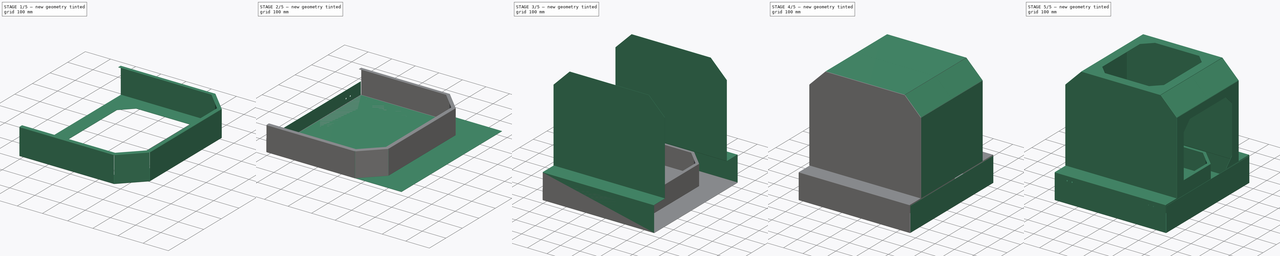
[diagram: build sequence overview — one tinted view per stage of 5, left to right]
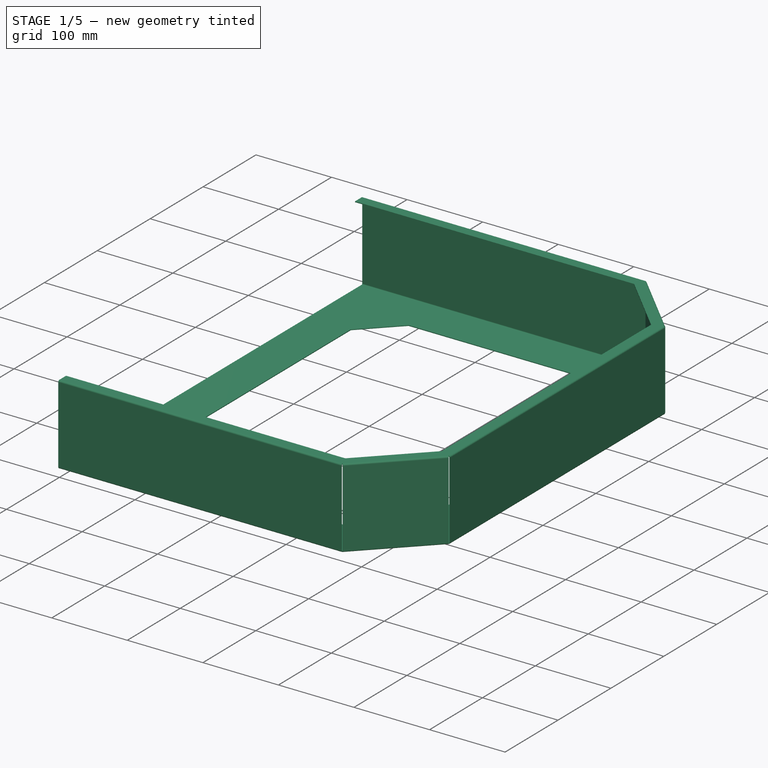
[diagram: stage 1 of 5 — iso view after this stage's code; geometry added in this stage tinted green]
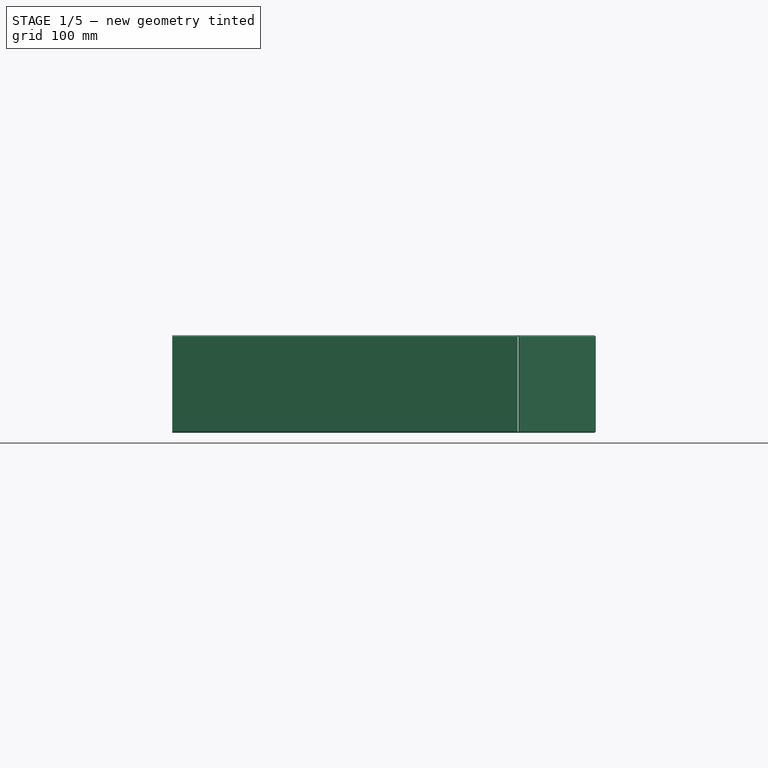
[diagram: stage 1 of 5 — front view after this stage's code; geometry added in this stage tinted green]
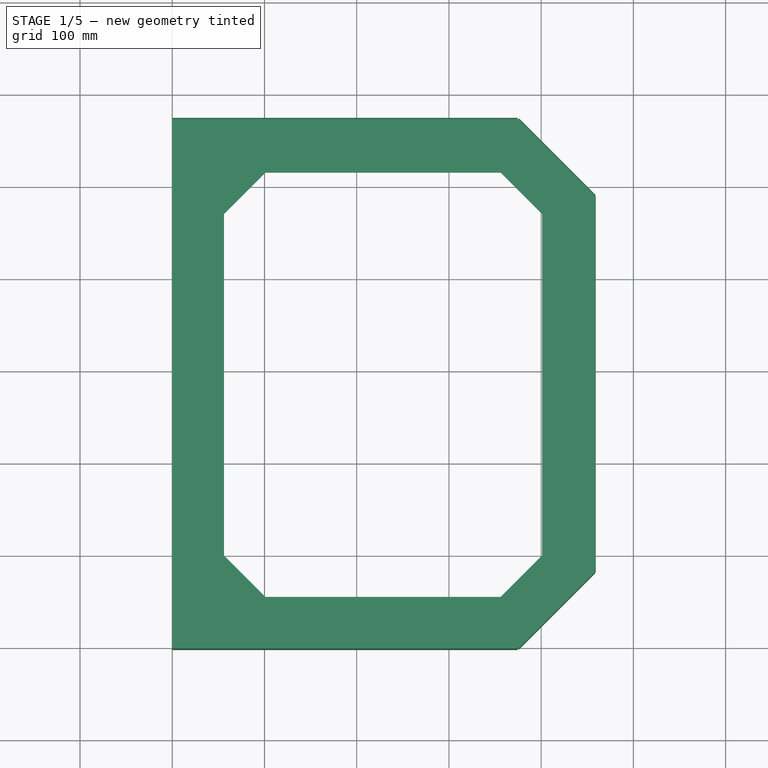
[diagram: stage 1 of 5 — top view after this stage's code; geometry added in this stage tinted green]
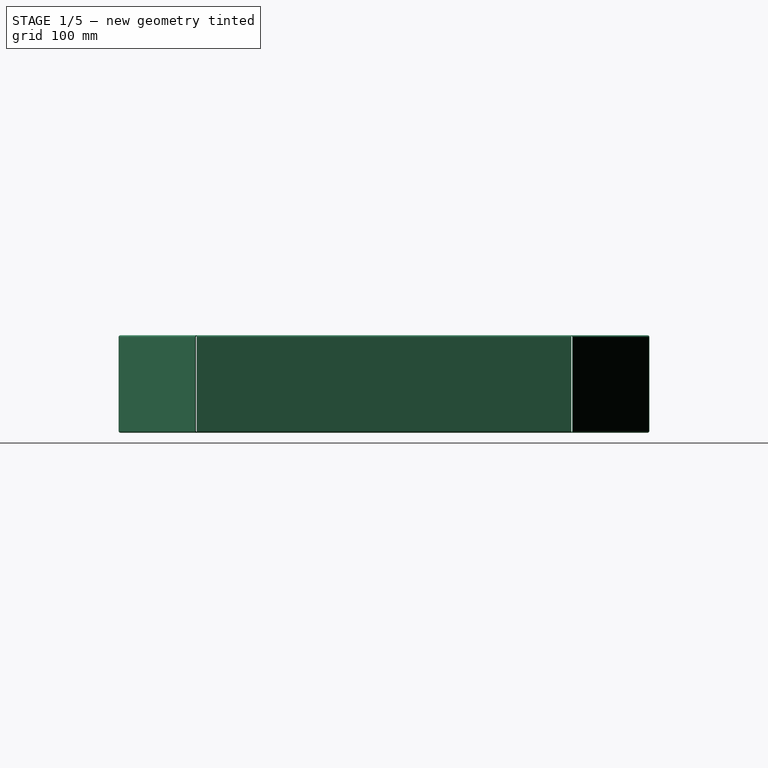
[diagram: stage 1 of 5 — right view after this stage's code; geometry added in this stage tinted green]
FCSTD DOCUMENT  (FreeCAD 0.19R23578 (Git))
Label: enclosure_sheetmetal
License: All rights reserved
LicenseURL: http://en.wikipedia.org/wiki/All_rights_reserved
objects: PartDesign::FeaturePython×10, Sketcher::SketchObject×7, PartDesign::CoordinateSystem×7, PartDesign::Pocket×5, PartDesign::Body×2, PartDesign::Chamfer×1
note: 38 computed .brp shape members not serialized (recipe doc carries the construction recipe); baked Part::Feature solids carry a one-line shape summary decoded from their .brp

FEATURE [Sketcher::SketchObject] Sketch006
  MapMode = 5
  Support = -> [XY_Plane003]
  expr: Constraints[38] = 460
  expr: Constraints[17] = 18"
  expr: Constraints[16] = 22.5"
  expr: Constraints[15] = 3.25"
  sketch-geometry (17):
    g0: LineSegment StartX=0 StartY=0 StartZ=0 EndX=0 EndY=571.5 EndZ=0
    g1: LineSegment StartX=0 StartY=571.5 StartZ=0 EndX=374.65 EndY=571.5 EndZ=0
    g2: LineSegment StartX=374.65 StartY=571.5 StartZ=0 EndX=457.2 EndY=488.95 EndZ=0
    g3: LineSegment StartX=457.2 StartY=488.95 StartZ=0 EndX=457.2 EndY=82.55 EndZ=0
    g4: LineSegment StartX=457.2 StartY=82.55 StartZ=0 EndX=374.65 EndY=0 EndZ=0
    g5: LineSegment StartX=374.65 StartY=0 StartZ=0 EndX=0 EndY=0 EndZ=0
    g6: LineSegment StartX=56.1 StartY=470.75 StartZ=0 EndX=101.1 EndY=515.75 EndZ=0
    g7: LineSegment StartX=101.1 StartY=515.75 StartZ=0 EndX=356.1 EndY=515.75 EndZ=0
    g8: LineSegment StartX=356.1 StartY=515.75 StartZ=0 EndX=401.1 EndY=470.75 EndZ=0
    g9: LineSegment StartX=401.1 StartY=470.75 StartZ=0 EndX=401.1 EndY=100.75 EndZ=0
    g10: LineSegment StartX=401.1 StartY=100.75 StartZ=0 EndX=356.1 EndY=55.75 EndZ=0
    g11: LineSegment StartX=356.1 StartY=55.75 StartZ=0 EndX=101.1 EndY=55.75 EndZ=0
    g12: LineSegment StartX=101.1 StartY=55.75 StartZ=0 EndX=56.1 EndY=100.75 EndZ=0
    g13: LineSegment StartX=56.1 StartY=100.75 StartZ=0 EndX=56.1 EndY=470.75 EndZ=0
    g14: LineSegment StartX=0 StartY=285.75 StartZ=0 EndX=457.2 EndY=285.75 EndZ=0
    g15: LineSegment StartX=228.6 StartY=571.5 StartZ=0 EndX=228.6 EndY=0 EndZ=0
    g16: GeomPoint X=0 Y=488.95 Z=0
  constraints (48):
    c: Coincident(g-1,g0)
    c: Vertical(g0)
    c: Coincident(g0,g1)
    c: Horizontal(g1)
    c: Coincident(g1,g2)
    c: Coincident(g2,g3)
    c: Vertical(g3)
    c: Coincident(g3,g4)
    c: PointOnObject(g4,g-1)
    c: Coincident(g4,g5)
    c: Coincident(g5,g0)
    c: Perpendicular(g2,g4)
    c: Equal(g2,g4)
    c: Angle(g3,g4) = 2.35619
    c: Equal(g2,g4)
    c: DistanceX(g4,g3) = 82.55
    c: DistanceY(g0,g0) = 571.5
    c: DistanceX(g0,g2) = 457.2
    c: Coincident(g6,g7)
    c: Horizontal(g7)
    c: Coincident(g7,g8)
    c: Coincident(g8,g9)
    c: Vertical(g9)
    c: Coincident(g9,g10)
    c: Coincident(g10,g11)
    c: Horizontal(g11)
    c: Coincident(g11,g12)
    c: Coincident(g12,g13)
    c: Coincident(g13,g6)
    c: Vertical(g13)
    c: Angle(g13,g6) = 2.35619
    c: Parallel(g6,g10)
    c: Parallel(g8,g12)
    c: Equal(g6,g12)
    c: Equal(g12,g10)
    c: Equal(g10,g8)
    c: DistanceX(g7,g8) = 45
    c: DistanceX(g6,g8) = 345
    c: DistanceY(g10,g7) = 460
    c: PointOnObject(g14,g0)
    c: PointOnObject(g14,g3)
    c: Symmetric(g0,g0,g14)
    c: Symmetric(g11,g6,g14)
    c: PointOnObject(g15,g1)
    c: PointOnObject(g15,g5)
    c: Symmetric(g6,g8,g15)
    c: PointOnObject(g16,g0)
    c: Symmetric(g16,g2,g15)
FEATURE [PartDesign::FeaturePython] BaseBend001  # WARN: FeaturePython — macro-defined, semantics opaque (R4)
  BendSide = 0
  BendSketch = -> Sketch006
  length = 100
  radius = 1
  thickness = 1
FEATURE [PartDesign::FeaturePython] Bend005  # WARN: FeaturePython — macro-defined, semantics opaque (R4)
  AutoMiter = true
  BaseFeature = -> BaseBend001
  BendType = 0
  LengthList = [101.6]
  ReliefFactor = 0.7
  UseReliefFactor = false
  angle = 90
  baseObject = -> BaseBend001 [Edge18,Edge16,Edge13,Edge10,Edge7]
  bendAList = [90]
  extend1 = 0
  extend2 = 0
  gap1 = 0
  gap2 = 0
  invert = false
  kfactor = 0.5
  length = 101.6
  miterangle1 = 0
  miterangle2 = 0
  offset = 0
  radius = 1
  reliefType = 0
  reliefd = 1
  reliefw = 0.8
  sketchflip = false
  sketchinvert = false
  unfold = false
  expr: length = 4"
FEATURE [PartDesign::FeaturePython] Bend006  # WARN: FeaturePython — macro-defined, semantics opaque (R4)
  AutoMiter = true
  BaseFeature = -> Bend005
  BendType = 0
  LengthList = [12.7]
  ReliefFactor = 0.7
  UseReliefFactor = false
  angle = 90
  baseObject = -> Bend005 [Edge116,Edge113,Edge110,Edge107,Edge10]
  bendAList = [90]
  extend1 = 0
  extend2 = 0
  gap1 = 0
  gap2 = 0
  invert = false
  kfactor = 0.5
  length = 12.7
  miterangle1 = 0
  miterangle2 = 0
  offset = 0
  radius = 1
  reliefType = 0
  reliefd = 1
  reliefw = 0.8
  sketchflip = false
  sketchinvert = false
  unfold = false
  expr: length = 0.5"
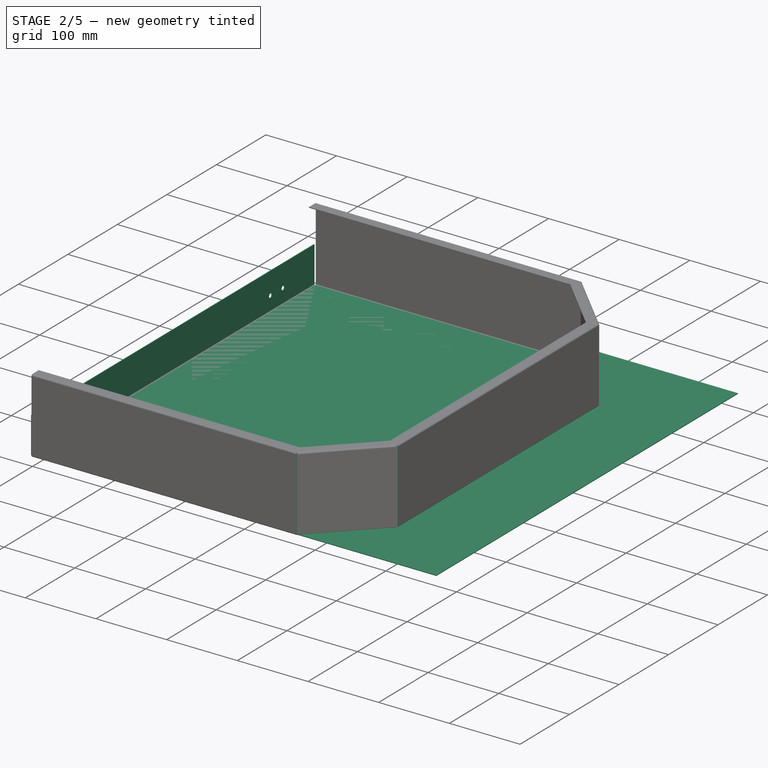
[diagram: stage 2 of 5 — iso view after this stage's code; geometry added in this stage tinted green]
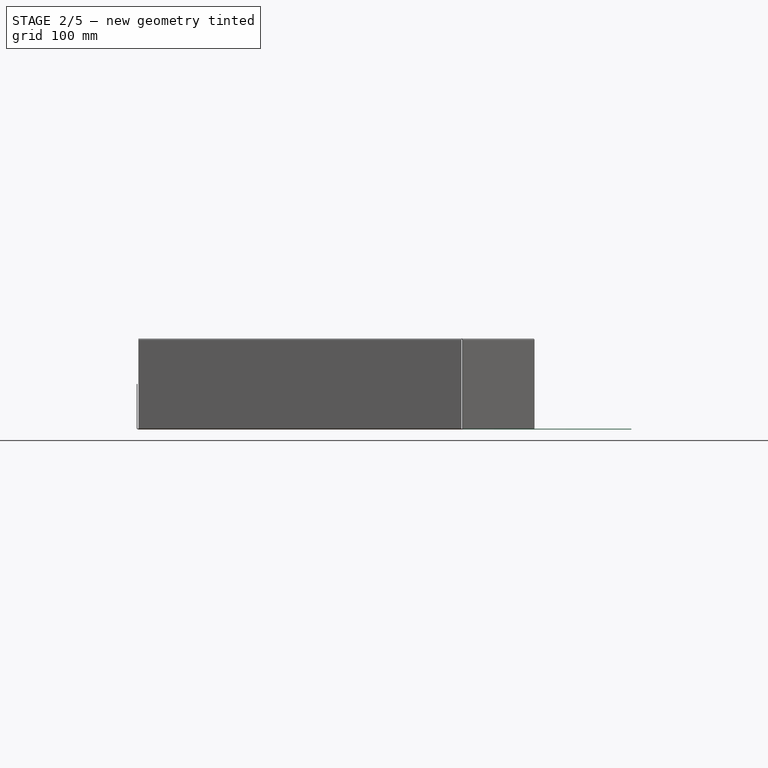
[diagram: stage 2 of 5 — front view after this stage's code; geometry added in this stage tinted green]
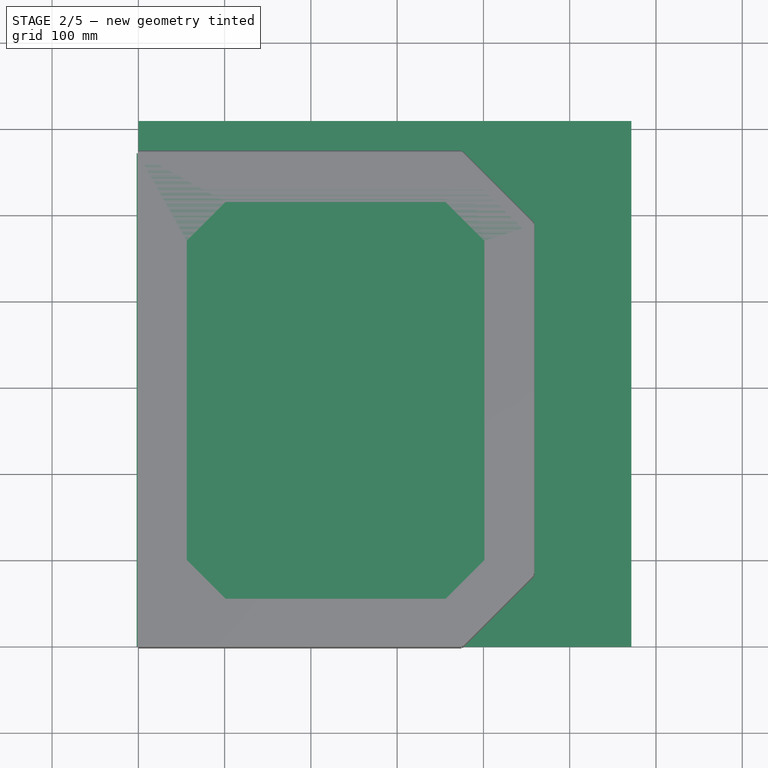
[diagram: stage 2 of 5 — top view after this stage's code; geometry added in this stage tinted green]
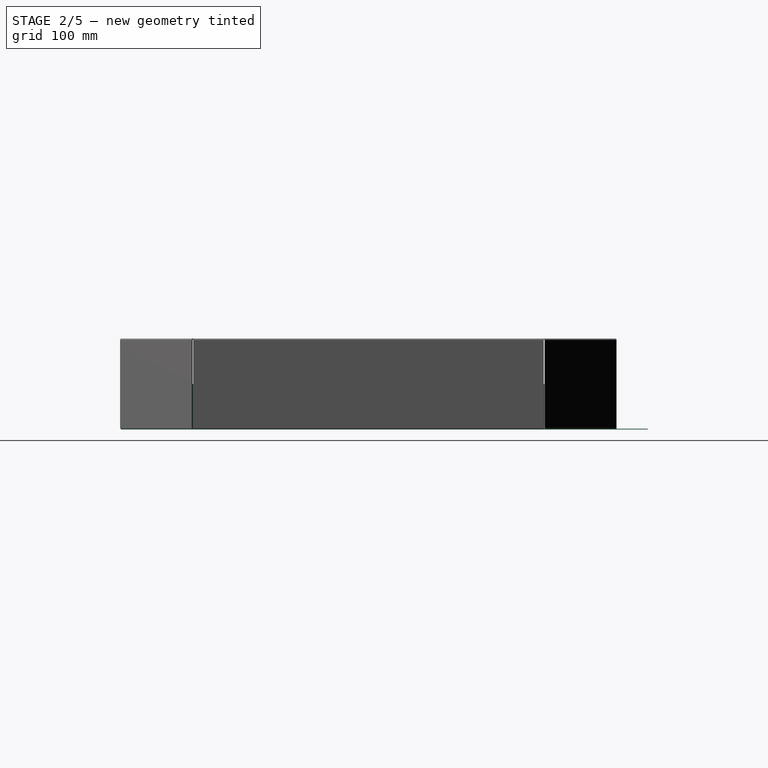
[diagram: stage 2 of 5 — right view after this stage's code; geometry added in this stage tinted green]
FEATURE [Sketcher::SketchObject] Sketch
  MapMode = 5
  Support = -> [XY_Plane001]
  expr: Constraints[9] = 24"
  expr: Constraints[10] = 22.5"
  sketch-geometry (4):
    g0: LineSegment StartX=0 StartY=0 StartZ=0 EndX=571.5 EndY=0 EndZ=0
    g1: LineSegment StartX=571.5 StartY=0 StartZ=0 EndX=571.5 EndY=609.6 EndZ=0
    g2: LineSegment StartX=571.5 StartY=609.6 StartZ=0 EndX=0 EndY=609.6 EndZ=0
    g3: LineSegment StartX=0 StartY=609.6 StartZ=0 EndX=0 EndY=0 EndZ=0
  constraints (11):
    c: Coincident(g0,g1)
    c: Coincident(g1,g2)
    c: Coincident(g2,g3)
    c: Coincident(g3,g0)
    c: Horizontal(g0)
    c: Horizontal(g2)
    c: Vertical(g1)
    c: Vertical(g3)
    c: Coincident(g0,g-1)
    c: DistanceY(g3,g3) = 609.6
    c: DistanceX(g0,g0) = 571.5
FEATURE [PartDesign::FeaturePython] BaseBend  # WARN: FeaturePython — macro-defined, semantics opaque (R4)
  BendSide = 0
  BendSketch = -> Sketch
  length = 100
  radius = 1
  thickness = 1
FEATURE [PartDesign::FeaturePython] Bend007  # WARN: FeaturePython — macro-defined, semantics opaque (R4)
  AutoMiter = true
  BaseFeature = -> Bend006
  BendType = 0
  LengthList = [50.8]
  ReliefFactor = 0.7
  UseReliefFactor = false
  angle = 90
  baseObject = -> Bend006 [Edge59]
  bendAList = [90]
  extend1 = 0
  extend2 = 0
  gap1 = 0
  gap2 = 0
  invert = false
  kfactor = 0.5
  length = 50.8
  miterangle1 = 0
  miterangle2 = 0
  offset = 0
  radius = 1
  reliefType = 0
  reliefd = 1
  reliefw = 0.8
  sketchflip = false
  sketchinvert = false
  unfold = false
  expr: length = 2"
FEATURE [Sketcher::SketchObject] Sketch007
  ExternalGeometry = -> [Bend007]
  MapMode = 5
  Placement = pos=(-2,0,0) rot=(0.57735,-0.57735,-0.57735;2.0944rad)
  Support = -> [Bend007]
  expr: Constraints[20] = 0.75"
  expr: Constraints[21] = 17.5"
  sketch-geometry (8):
    g0: Circle CenterX=-508 CenterY=21.05 CenterZ=0 NormalX=0 NormalY=0 NormalZ=1 AngleXU=0 Radius=3
    g1: Circle CenterX=-482.6 CenterY=21.05 CenterZ=0 NormalX=0 NormalY=0 NormalZ=1 AngleXU=0 Radius=3
    g2: Circle CenterX=-88.9 CenterY=21.05 CenterZ=0 NormalX=0 NormalY=0 NormalZ=1 AngleXU=0 Radius=3
    g3: Circle CenterX=-63.5 CenterY=21.05 CenterZ=0 NormalX=0 NormalY=0 NormalZ=1 AngleXU=0 Radius=3
    g4: LineSegment StartX=-508 StartY=21.05 StartZ=0 EndX=-285.75 EndY=21.05 EndZ=0
    g5: LineSegment StartX=-285.75 StartY=21.05 StartZ=0 EndX=-63.5 EndY=21.05 EndZ=0
    g6: LineSegment StartX=-571.5 StartY=52.8 StartZ=0 EndX=-285.75 EndY=52.8 EndZ=0
    g7: LineSegment StartX=-285.75 StartY=52.8 StartZ=0 EndX=0 EndY=52.8 EndZ=0
  constraints (22):
    c: DistanceX(g0,g1) = 25.4
    c: DistanceX(g2,g3) = 25.4
    c: Equal(g2,g3)
    c: Equal(g3,g1)
    c: Equal(g1,g0)
    c: Diameter(g1) = 6
    c: Coincident(g4,g0)
    c: Horizontal(g4)
    c: Coincident(g5,g4)
    c: Coincident(g5,g3)
    c: Horizontal(g5)
    c: PointOnObject(g2,g5)
    c: PointOnObject(g1,g4)
    c: Equal(g4,g5)
    c: Coincident(g6,g-3)
    c: Horizontal(g6)
    c: Coincident(g7,g6)
    c: Coincident(g7,g-4)
    c: Equal(g7,g6)
    c: Vertical(g4,g6)
    c: DistanceY(g-3,g0) = 19.05
    c: DistanceX(g0,g3) = 444.5
FEATURE [PartDesign::Pocket] Pocket004
  BaseFeature = -> Bend007
  Length = 5
  Length2 = 100
  Profile = -> Sketch007
  Type = 0
FEATURE [PartDesign::CoordinateSystem] LCS_4
  AttacherType = Attacher::AttachEngine3D
  AttachmentOffset = pos=(0,304.8,0) rot=(0,0,1;0rad)
  MapMode = 1
  Placement = pos=(0,304.8,0) rot=(0,0,1;0rad)
  Support = -> [Pocket003]
  expr: .AttachmentOffset.Base.y = 0.5 * 609.6mm
FEATURE [PartDesign::CoordinateSystem] LCS_5
  AttacherType = Attacher::AttachEngine3D
  MapMode = 45
  Placement = pos=(573.5,304.8,298) rot=(0.707107,0,0.707107;3.14159rad)
  Support = -> [Pocket003]
FEATURE [PartDesign::CoordinateSystem] LCS_6
  AttacherType = Attacher::AttachEngine3D
  MapMode = 45
  Placement = pos=(76.2,611.6,107.95) rot=(0.57735,0.57735,0.57735;4.18879rad)
  Support = -> [Pocket003]
FEATURE [PartDesign::CoordinateSystem] LCS_7
  AttacherType = Attacher::AttachEngine3D
  MapMode = 45
  Placement = pos=(495.3,611.6,107.95) rot=(0.57735,0.57735,0.57735;4.18879rad)
  Support = -> [Pocket003]
FEATURE [PartDesign::Body] Body  label="main_housing"
  Group = -> [Sketch,BaseBend,Bend,Bend001,Bend002,Chamfer,Bend003,Bend004,Sketch001,Sketch002,Sketch003,Sketch004,Pocket,Pocket001,Pocket002,Pocket003,LCS_4,LCS_5,LCS_6,LCS_7]
  Origin = -> Origin001
  Tip = -> Pocket003
FEATURE [PartDesign::CoordinateSystem] LCS_1
  AttacherType = Attacher::AttachEngine3D
  MapMode = 45
  Placement = pos=(228.6,285.75,0) rot=(0,0,1;0rad)
  Support = -> [Pocket004]
FEATURE [PartDesign::CoordinateSystem] LCS_2
  AttacherType = Attacher::AttachEngine3D
  MapMode = 45
  Placement = pos=(-2,76.2,21.05) rot=(0.707107,0,0.707107;3.14159rad)
  Support = -> [Pocket004]
FEATURE [PartDesign::CoordinateSystem] LCS_3
  AttacherType = Attacher::AttachEngine3D
  MapMode = 45
  Placement = pos=(-2,495.3,21.05) rot=(0.707107,0,0.707107;3.14159rad)
  Support = -> [Pocket004]
FEATURE [PartDesign::Body] Body001  label="door"
  Group = -> [Sketch006,BaseBend001,Bend005,Bend006,Bend007,Sketch007,Pocket004,LCS_1,LCS_2,LCS_3]
  Origin = -> Origin003
  Tip = -> Pocket004
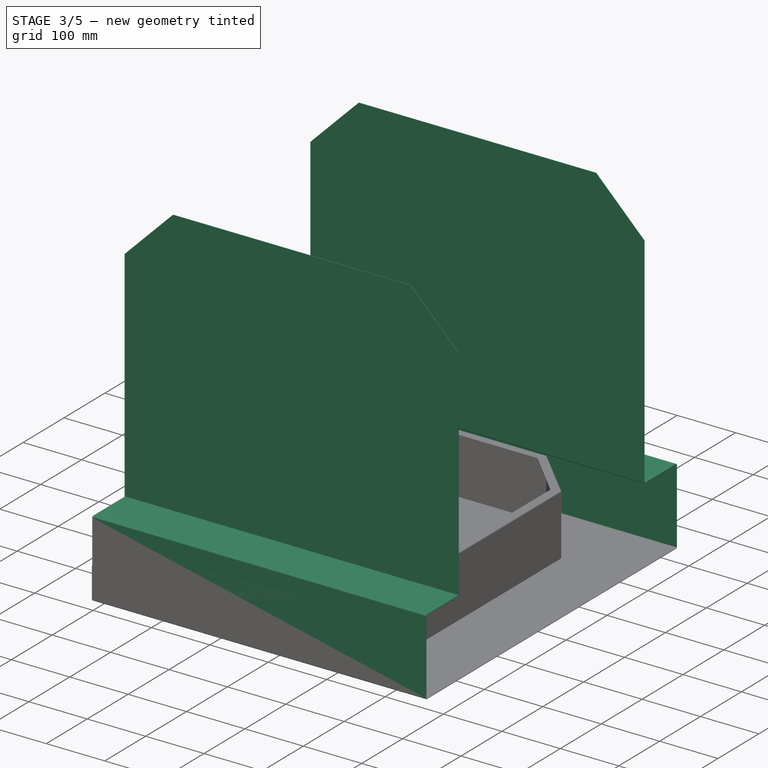
[diagram: stage 3 of 5 — iso view after this stage's code; geometry added in this stage tinted green]
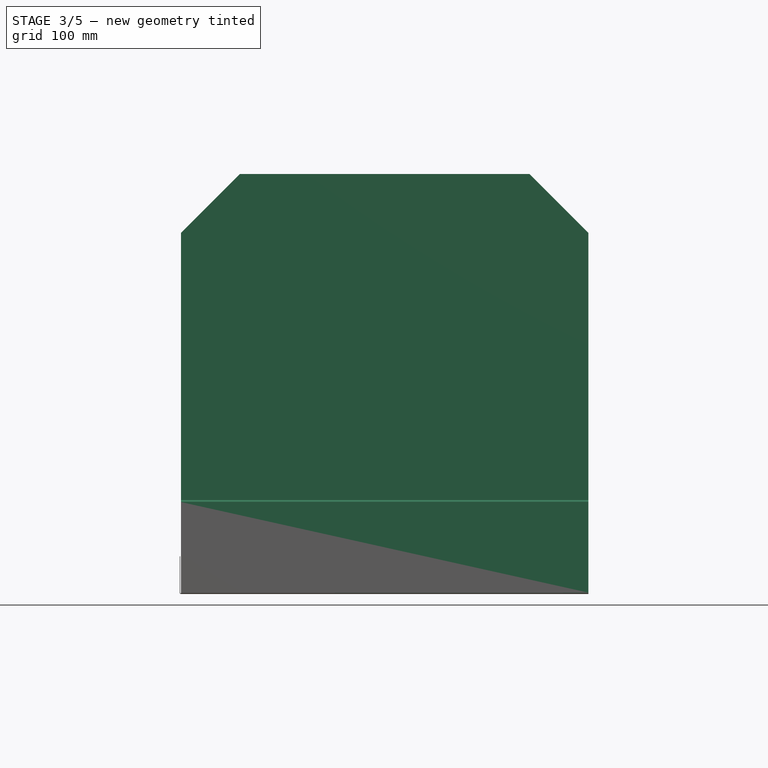
[diagram: stage 3 of 5 — front view after this stage's code; geometry added in this stage tinted green]
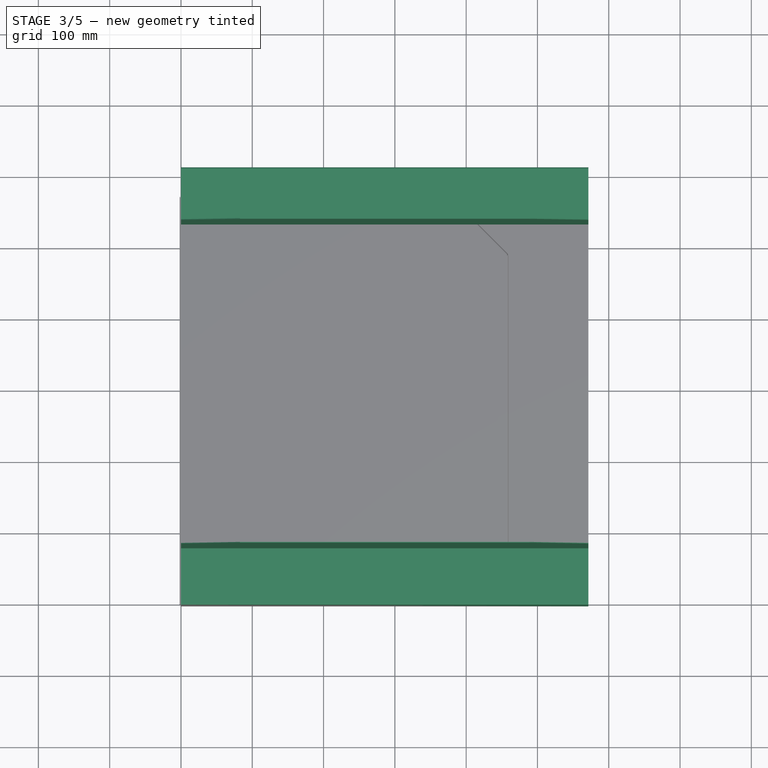
[diagram: stage 3 of 5 — top view after this stage's code; geometry added in this stage tinted green]
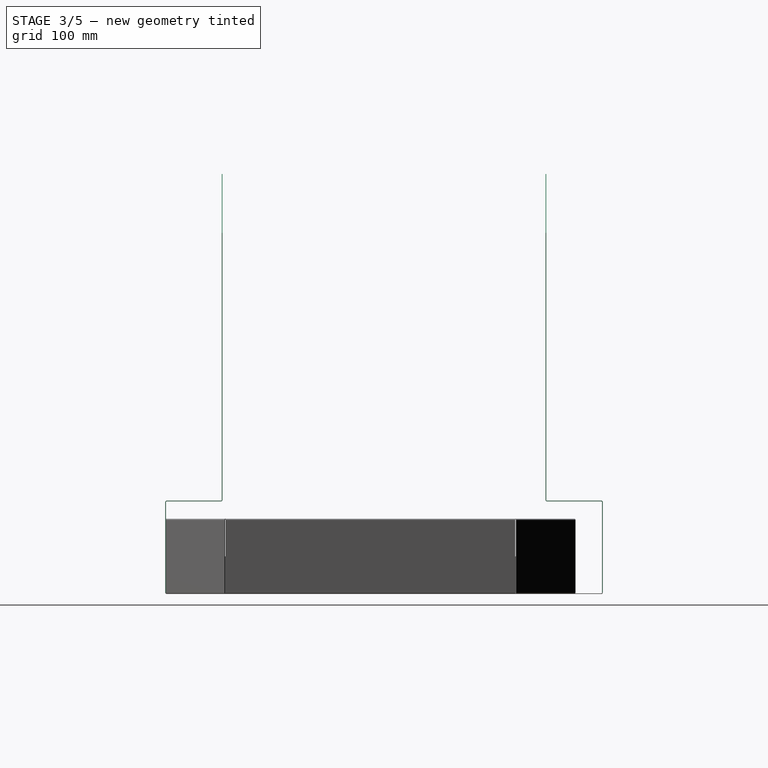
[diagram: stage 3 of 5 — right view after this stage's code; geometry added in this stage tinted green]
FEATURE [PartDesign::FeaturePython] Bend  # WARN: FeaturePython — macro-defined, semantics opaque (R4)
  AutoMiter = true
  BaseFeature = -> BaseBend
  BendType = 0
  LengthList = [127]
  ReliefFactor = 0.7
  UseReliefFactor = false
  angle = 90
  baseObject = -> BaseBend [Edge4,Edge10]
  bendAList = [90]
  extend1 = 0
  extend2 = 0
  gap1 = 0
  gap2 = 0
  invert = false
  kfactor = 0.5
  length = 127
  miterangle1 = 0
  miterangle2 = 0
  offset = 0
  radius = 1
  reliefType = 0
  reliefd = 1
  reliefw = 0.8
  sketchflip = false
  sketchinvert = false
  unfold = false
  expr: length = 5"
FEATURE [PartDesign::FeaturePython] Bend001  # WARN: FeaturePython — macro-defined, semantics opaque (R4)
  AutoMiter = true
  BaseFeature = -> Bend
  BendType = 0
  LengthList = [76.2]
  ReliefFactor = 0.7
  UseReliefFactor = false
  angle = 90
  baseObject = -> Bend [Edge43,Edge10]
  bendAList = [90]
  extend1 = 0
  extend2 = 0
  gap1 = 0
  gap2 = 0
  invert = false
  kfactor = 0.5
  length = 76.2
  miterangle1 = 0
  miterangle2 = 0
  offset = 0
  radius = 1
  reliefType = 0
  reliefd = 1
  reliefw = 0.8
  sketchflip = false
  sketchinvert = false
  unfold = false
  expr: length = 3"
FEATURE [PartDesign::FeaturePython] Bend002  # WARN: FeaturePython — macro-defined, semantics opaque (R4)
  AutoMiter = true
  BaseFeature = -> Bend001
  BendType = 0
  LengthList = [457.2]
  ReliefFactor = 0.7
  UseReliefFactor = false
  angle = 90
  baseObject = -> Bend001 [Edge73,Edge9]
  bendAList = [90]
  extend1 = 0
  extend2 = 0
  gap1 = 0
  gap2 = 0
  invert = true
  kfactor = 0.5
  length = 457.2
  miterangle1 = 0
  miterangle2 = 0
  offset = 0
  radius = 1
  reliefType = 0
  reliefd = 1
  reliefw = 0.8
  sketchflip = false
  sketchinvert = false
  unfold = false
  expr: length = 18"
FEATURE [PartDesign::Chamfer] Chamfer
  Angle = 45
  Base = -> Bend002 [Edge100,Edge2,Edge8,Edge108]
  BaseFeature = -> Bend002
  ChamferType = 0
  FlipDirection = false
  Size = 82.55
  Size2 = 1
  SupportTransform = true
  expr: Size = 3.25"
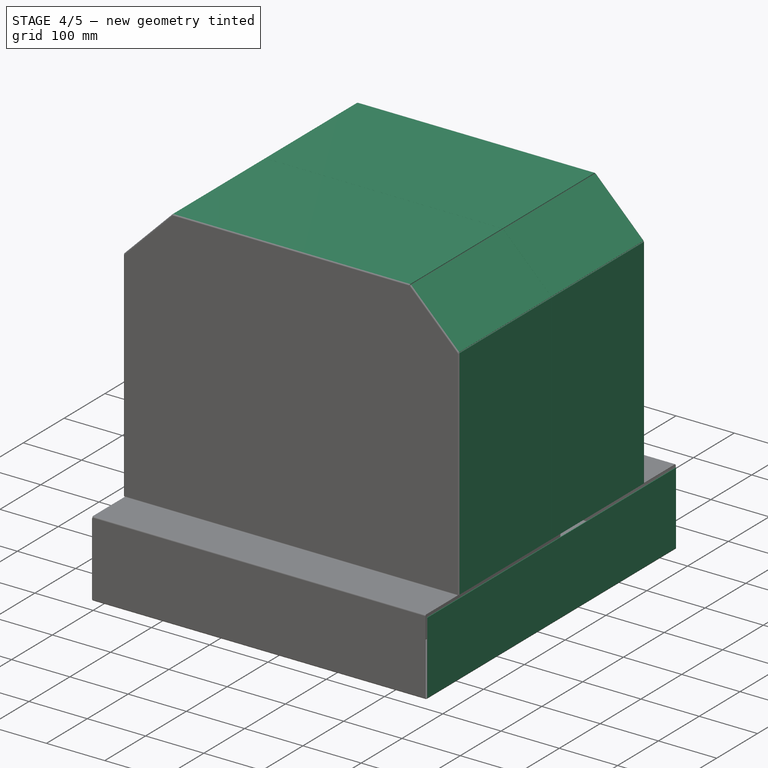
[diagram: stage 4 of 5 — iso view after this stage's code; geometry added in this stage tinted green]
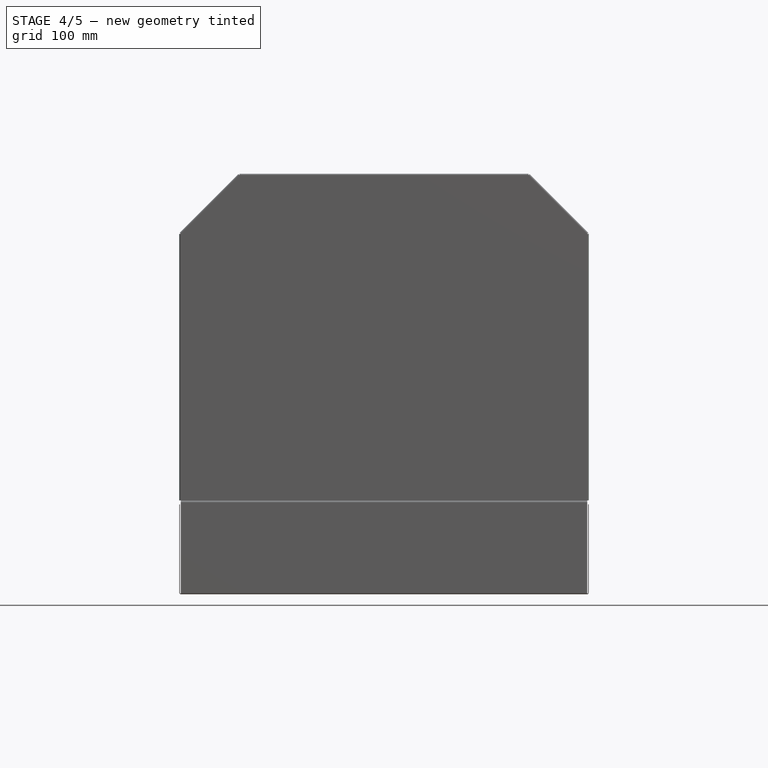
[diagram: stage 4 of 5 — front view after this stage's code; geometry added in this stage tinted green]
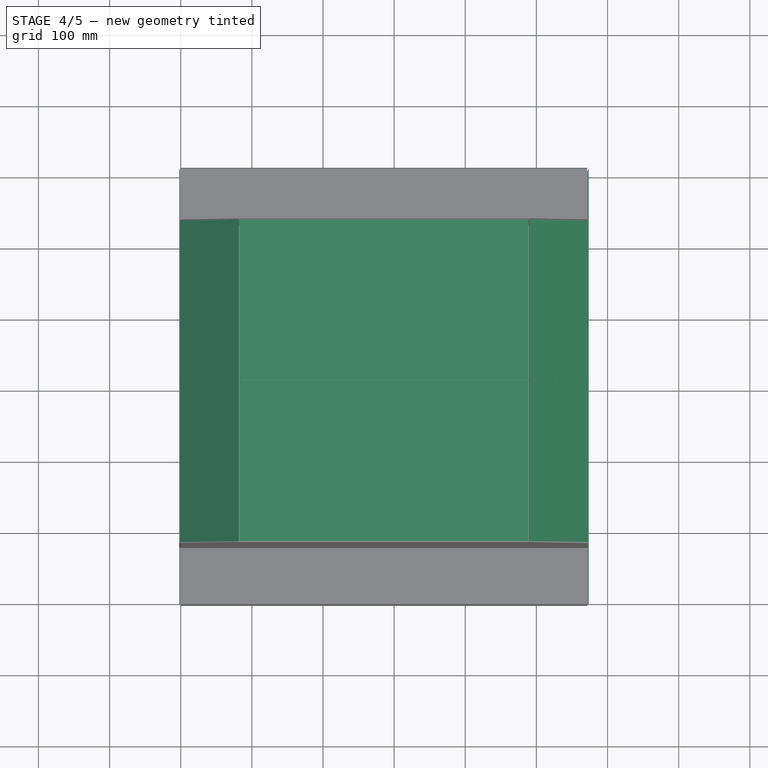
[diagram: stage 4 of 5 — top view after this stage's code; geometry added in this stage tinted green]
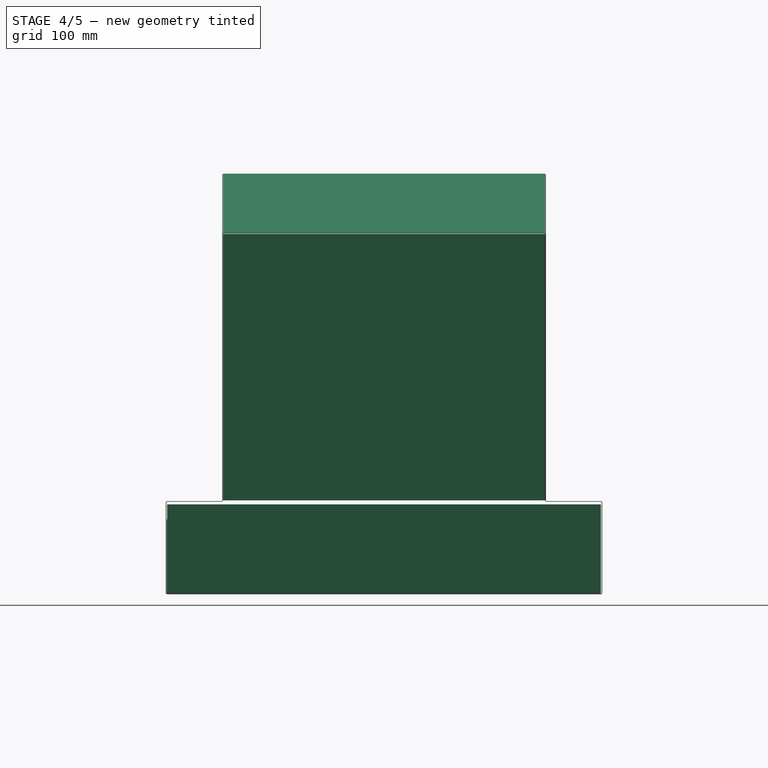
[diagram: stage 4 of 5 — right view after this stage's code; geometry added in this stage tinted green]
FEATURE [PartDesign::FeaturePython] Bend003  # WARN: FeaturePython — macro-defined, semantics opaque (R4)
  AutoMiter = true
  BaseFeature = -> Chamfer
  BendType = 0
  LengthList = [225.552]
  ReliefFactor = 0.7
  UseReliefFactor = false
  angle = 90
  baseObject = -> Chamfer [Edge11,Edge16,Edge4,Edge18,Edge17,Edge108,Edge117,Edge116,Edge115,Edge114]
  bendAList = [90]
  extend1 = 0
  extend2 = 0
  gap1 = 0
  gap2 = 0
  invert = false
  kfactor = 0.5
  length = 225.552
  miterangle1 = 0
  miterangle2 = 0
  offset = 0
  radius = 1
  reliefType = 0
  reliefd = 1
  reliefw = 0.8
  sketchflip = false
  sketchinvert = false
  unfold = false
  expr: length = 8.880000000000001"
FEATURE [PartDesign::FeaturePython] Bend004  # WARN: FeaturePython — macro-defined, semantics opaque (R4)
  AutoMiter = true
  BaseFeature = -> Bend003
  BendType = 0
  LengthList = [124.46]
  ReliefFactor = 0.7
  UseReliefFactor = false
  angle = 90
  baseObject = -> Bend003 [Edge140,Edge144]
  bendAList = [90]
  extend1 = 0
  extend2 = 0
  gap1 = 0
  gap2 = 0
  invert = false
  kfactor = 0.5
  length = 124.46
  miterangle1 = 0
  miterangle2 = 0
  offset = 0
  radius = 1
  reliefType = 0
  reliefd = 1
  reliefw = 0.8
  sketchflip = false
  sketchinvert = false
  unfold = false
  expr: length = 4.9"
FEATURE [Sketcher::SketchObject] Sketch001
  MapMode = 5
  Placement = pos=(0,0,0) rot=(0.57735,0.57735,0.57735;2.0944rad)
  Support = -> [YZ_Plane001]
  expr: Constraints[16] = 12"
  expr: Constraints[20] = 4"
  expr: Constraints[21] = 23"
  expr: Constraints[22] = 0.5"
  expr: Constraints[23] = 10.5"
  expr: Constraints[24] = 14"
  sketch-geometry (9):
    g0: LineSegment StartX=127 StartY=114.3 StartZ=0 EndX=127 EndY=381 EndZ=0
    g1: LineSegment StartX=127 StartY=381 StartZ=0 EndX=482.6 EndY=381 EndZ=0
    g2: LineSegment StartX=482.6 StartY=381 StartZ=0 EndX=482.6 EndY=114.3 EndZ=0
    g3: LineSegment StartX=482.6 StartY=114.3 StartZ=0 EndX=596.9 EndY=114.3 EndZ=0
    g4: LineSegment StartX=596.9 StartY=114.3 StartZ=0 EndX=596.9 EndY=12.7 EndZ=0
    g5: LineSegment StartX=596.9 StartY=12.7 StartZ=0 EndX=12.7 EndY=12.7 EndZ=0
    g6: LineSegment StartX=12.7 StartY=12.7 StartZ=0 EndX=12.7 EndY=114.3 EndZ=0
    g7: LineSegment StartX=12.7 StartY=114.3 StartZ=0 EndX=127 EndY=114.3 EndZ=0
    g8: LineSegment StartX=304.8 StartY=381 StartZ=0 EndX=304.8 EndY=12.7 EndZ=0
  constraints (25):
    c: Vertical(g0)
    c: Coincident(g0,g1)
    c: Horizontal(g1)
    c: Coincident(g1,g2)
    c: Coincident(g2,g3)
    c: Horizontal(g3)
    c: Coincident(g3,g4)
    c: Vertical(g4)
    c: Coincident(g4,g5)
    c: Coincident(g5,g6)
    c: Vertical(g6)
    c: Coincident(g6,g7)
    c: Horizontal(g7)
    c: Coincident(g0,g7)
    c: PointOnObject(g8,g1)
    c: PointOnObject(g8,g5)
    c: DistanceX(g-1,g8) = 304.8
    c: Symmetric(g1,g0,g8)
    c: Symmetric(g2,g0,g8)
    c: Symmetric(g5,g4,g8)
    c: DistanceY(g4,g4) = 101.6
    c: DistanceX(g5,g5) = 584.2
    c: DistanceY(g-1,g5) = 12.7
    c: DistanceY(g2,g2) = 266.7
    c: DistanceX(g1,g1) = 355.6
FEATURE [Sketcher::SketchObject] Sketch002
  AttachmentOffset = pos=(0,0,571.5) rot=(0,0,1;0rad)
  MapMode = 5
  Placement = pos=(571.5,-1.269e-13,1.269e-13) rot=(0.57735,0.57735,0.57735;2.0944rad)
  Support = -> [YZ_Plane001]
  expr: Constraints[31] = 12"
  expr: .AttachmentOffset.Base.z = 22.5"
  sketch-geometry (11):
    g0: LineSegment StartX=172.3 StartY=465.5 StartZ=0 EndX=437.3 EndY=465.5 EndZ=0
    g1: LineSegment StartX=437.3 StartY=465.5 StartZ=0 EndX=482.3 EndY=420.5 EndZ=0
    g2: LineSegment StartX=482.3 StartY=420.5 StartZ=0 EndX=482.3 EndY=175.5 EndZ=0
    g3: LineSegment StartX=482.3 StartY=175.5 StartZ=0 EndX=437.3 EndY=130.5 EndZ=0
    g4: LineSegment StartX=437.3 StartY=130.5 StartZ=0 EndX=172.3 EndY=130.5 EndZ=0
    g5: LineSegment StartX=172.3 StartY=130.5 StartZ=0 EndX=127.3 EndY=175.5 EndZ=0
    g6: LineSegment StartX=127.3 StartY=175.5 StartZ=0 EndX=127.3 EndY=420.5 EndZ=0
    g7: LineSegment StartX=127.3 StartY=420.5 StartZ=0 EndX=172.3 EndY=465.5 EndZ=0
    g8: LineSegment StartX=304.8 StartY=465.5 StartZ=0 EndX=304.8 EndY=130.5 EndZ=0
    g9: LineSegment StartX=127.3 StartY=298 StartZ=0 EndX=482.3 EndY=298 EndZ=0
    g10: GeomPoint X=304.8 Y=298 Z=0
  constraints (32):
    c: Horizontal(g0)
    c: Coincident(g0,g1)
    c: Coincident(g1,g2)
    c: Vertical(g2)
    c: Coincident(g2,g3)
    c: Coincident(g3,g4)
    c: Horizontal(g4)
    c: Coincident(g4,g5)
    c: Coincident(g5,g6)
    c: Coincident(g6,g7)
    c: Coincident(g7,g0)
    c: Vertical(g6)
    c: Equal(g7,g5)
    c: Equal(g5,g3)
    c: Equal(g3,g1)
    c: Equal(g0,g4)
    c: Equal(g6,g2)
    c: Angle(g7,g0) = 2.35619
    c: Perpendicular(g1,g7)
    c: DistanceX(g6,g1) = 355
    c: DistanceY(g4,g0) = 335
    c: DistanceY(g1,g0) = 45
    c: PointOnObject(g8,g0)
    c: PointOnObject(g8,g4)
    c: PointOnObject(g9,g6)
    c: PointOnObject(g9,g2)
    c: Symmetric(g1,g6,g8)
    c: Symmetric(g3,g0,g9)
    c: PointOnObject(g10,g9)
    c: PointOnObject(g10,g8)
    c: DistanceY(g-1,g10) = 298
    c: DistanceX(g-1,g10) = 304.8
FEATURE [Sketcher::SketchObject] Sketch003
  AttachmentOffset = pos=(0,0,584.2) rot=(0,0,1;0rad)
  MapMode = 5
  Placement = pos=(0,0,584.2) rot=(0,0,1;0rad)
  Support = -> [XY_Plane001]
  expr: Constraints[20] = 12.5"
  expr: Constraints[21] = 14.5"
  expr: Constraints[30] = 12"
  expr: Constraints[31] = 11.25"
  expr: .AttachmentOffset.Base.z = 23"
  sketch-geometry (11):
    g0: LineSegment StartX=127 StartY=443.95 StartZ=0 EndX=172 EndY=488.95 EndZ=0
    g1: LineSegment StartX=172 StartY=488.95 StartZ=0 EndX=399.5 EndY=488.95 EndZ=0
    g2: LineSegment StartX=399.5 StartY=488.95 StartZ=0 EndX=444.5 EndY=443.95 EndZ=0
    g3: LineSegment StartX=444.5 StartY=443.95 StartZ=0 EndX=444.5 EndY=165.65 EndZ=0
    g4: LineSegment StartX=444.5 StartY=165.65 StartZ=0 EndX=399.5 EndY=120.65 EndZ=0
    g5: LineSegment StartX=399.5 StartY=120.65 StartZ=0 EndX=172 EndY=120.65 EndZ=0
    g6: LineSegment StartX=172 StartY=120.65 StartZ=0 EndX=127 EndY=165.65 EndZ=0
    g7: LineSegment StartX=127 StartY=165.65 StartZ=0 EndX=127 EndY=443.95 EndZ=0
    g8: LineSegment StartX=127 StartY=304.8 StartZ=0 EndX=444.5 EndY=304.8 EndZ=0
    g9: LineSegment StartX=285.75 StartY=488.95 StartZ=0 EndX=285.75 EndY=120.65 EndZ=0
    g10: GeomPoint X=285.75 Y=304.8 Z=0
  constraints (32):
    c: Coincident(g0,g1)
    c: Horizontal(g1)
    c: Coincident(g1,g2)
    c: Coincident(g2,g3)
    c: Vertical(g3)
    c: Coincident(g3,g4)
    c: Coincident(g4,g5)
    c: Horizontal(g5)
    c: Coincident(g5,g6)
    c: Coincident(g6,g7)
    c: Coincident(g7,g0)
    c: Vertical(g7)
    c: Equal(g0,g2)
    c: Equal(g2,g4)
    c: Equal(g4,g6)
    c: Angle(g5,g6) = 2.35619
    c: Parallel(g2,g6)
    c: Parallel(g0,g4)
    c: Perpendicular(g0,g6)
    c: DistanceX(g0,g0) = 45
    c: DistanceX(g0,g2) = 317.5
    c: DistanceY(g5,g0) = 368.3
    c: PointOnObject(g8,g7)
    c: PointOnObject(g8,g3)
    c: PointOnObject(g9,g1)
    c: PointOnObject(g9,g5)
    c: PointOnObject(g10,g8)
    c: PointOnObject(g10,g9)
    c: Symmetric(g2,g0,g9)
    c: Symmetric(g1,g4,g8)
    c: DistanceY(g-1,g10) = 304.8
    c: DistanceX(g-1,g10) = 285.75
FEATURE [Sketcher::SketchObject] Sketch004
  MapMode = 5
  Placement = pos=(0,0,0) rot=(1,0,0;1.5708rad)
  Support = -> [XZ_Plane001]
  expr: Constraints[11] = 2.5"
  expr: Constraints[12] = 17.5"
  expr: Constraints[13] = 4.25"
  sketch-geometry (5):
    g0: LineSegment StartX=63.5 StartY=107.95 StartZ=0 EndX=508 EndY=107.95 EndZ=0
    g1: Circle CenterX=63.5 CenterY=107.95 CenterZ=0 NormalX=0 NormalY=0 NormalZ=1 AngleXU=0 Radius=3
    g2: Circle CenterX=88.9 CenterY=107.95 CenterZ=0 NormalX=0 NormalY=0 NormalZ=1 AngleXU=0 Radius=3
    g3: Circle CenterX=508 CenterY=107.95 CenterZ=0 NormalX=0 NormalY=0 NormalZ=1 AngleXU=0 Radius=3
    g4: Circle CenterX=482.6 CenterY=107.95 CenterZ=0 NormalX=0 NormalY=0 NormalZ=1 AngleXU=0 Radius=3
  constraints (14):
    c: Horizontal(g0)
    c: Coincident(g1,g0)
    c: PointOnObject(g2,g0)
    c: Coincident(g3,g0)
    c: PointOnObject(g4,g0)
    c: Equal(g4,g3)
    c: Equal(g3,g2)
    c: Equal(g2,g1)
    c: Diameter(g2) = 6
    c: DistanceX(g1,g2) = 25.4
    c: DistanceX(g4,g3) = 25.4
    c: DistanceX(g-1,g1) = 63.5
    c: DistanceX(g0,g0) = 444.5
    c: DistanceY(g-1,g1) = 107.95
FEATURE [PartDesign::Pocket] Pocket
  BaseFeature = -> Bend004
  Length = 20
  Length2 = 100
  Midplane = true
  Profile = -> Sketch001
  Type = 0
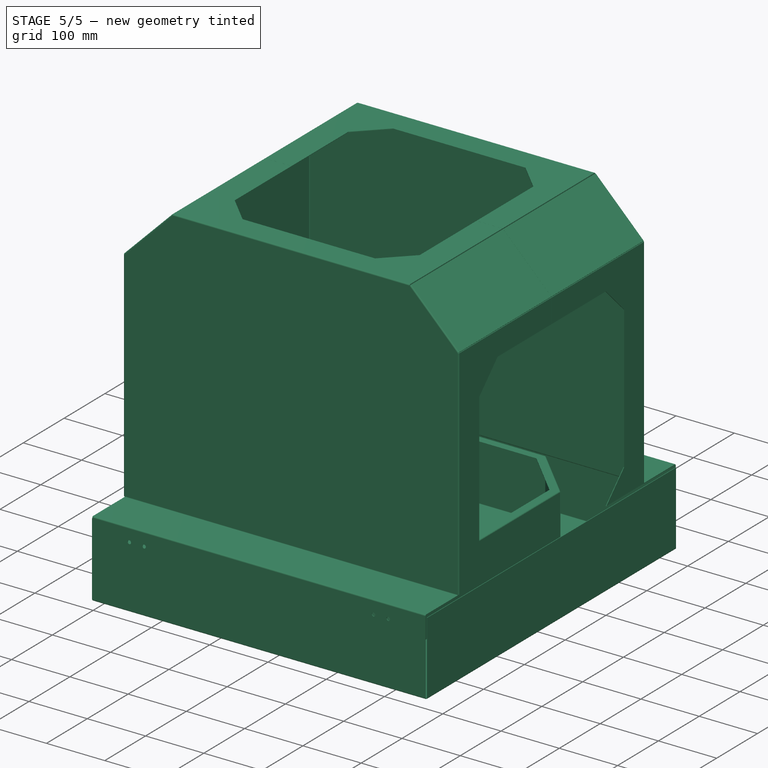
[diagram: stage 5 of 5 — iso view after this stage's code; geometry added in this stage tinted green]
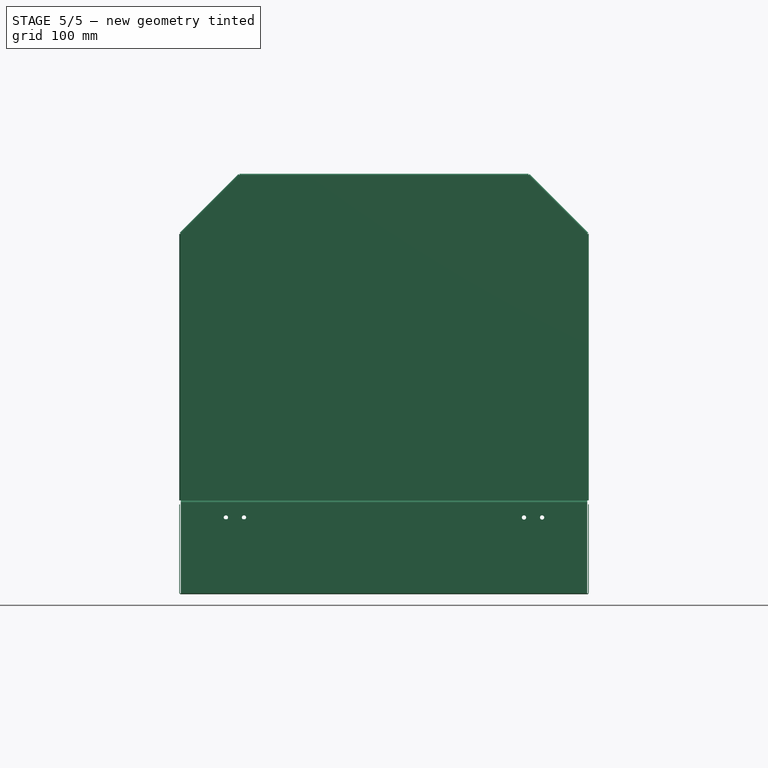
[diagram: stage 5 of 5 — front view after this stage's code; geometry added in this stage tinted green]
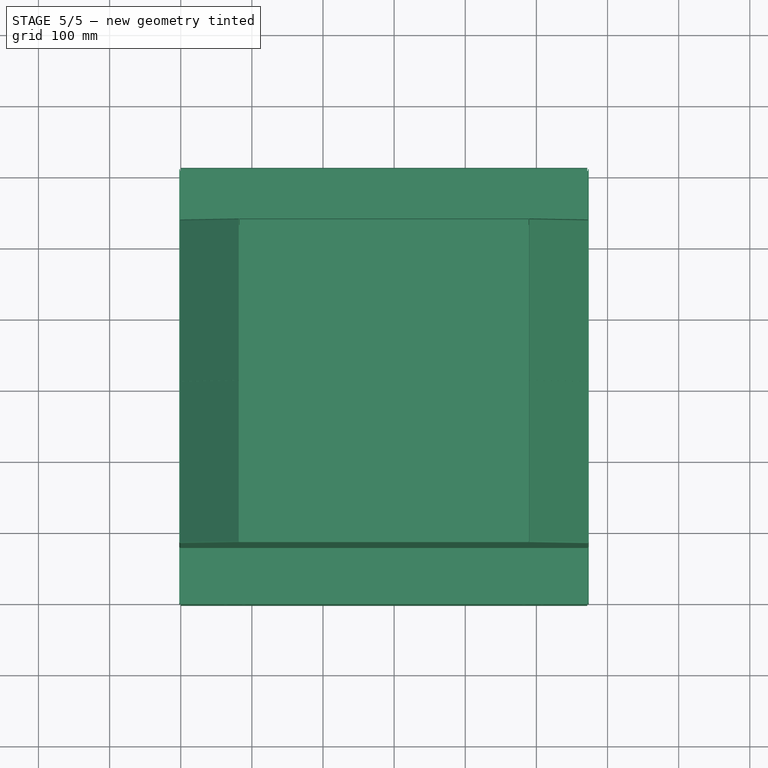
[diagram: stage 5 of 5 — top view after this stage's code; geometry added in this stage tinted green]
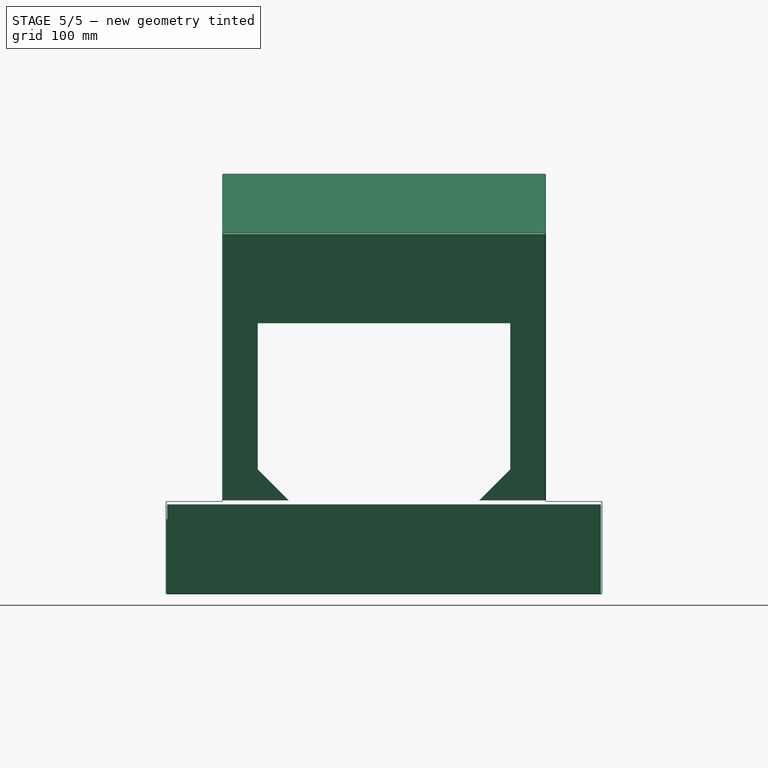
[diagram: stage 5 of 5 — right view after this stage's code; geometry added in this stage tinted green]
FEATURE [PartDesign::Pocket] Pocket001
  BaseFeature = -> Pocket
  Length = 20
  Length2 = 100
  Midplane = true
  Profile = -> Sketch002
  Type = 0
FEATURE [PartDesign::Pocket] Pocket002
  BaseFeature = -> Pocket001
  Length = 20
  Length2 = 100
  Midplane = true
  Profile = -> Sketch003
  Type = 0
FEATURE [PartDesign::Pocket] Pocket003
  BaseFeature = -> Pocket002
  Length = 5
  Length2 = 100
  Midplane = true
  Profile = -> Sketch004
  Type = 1
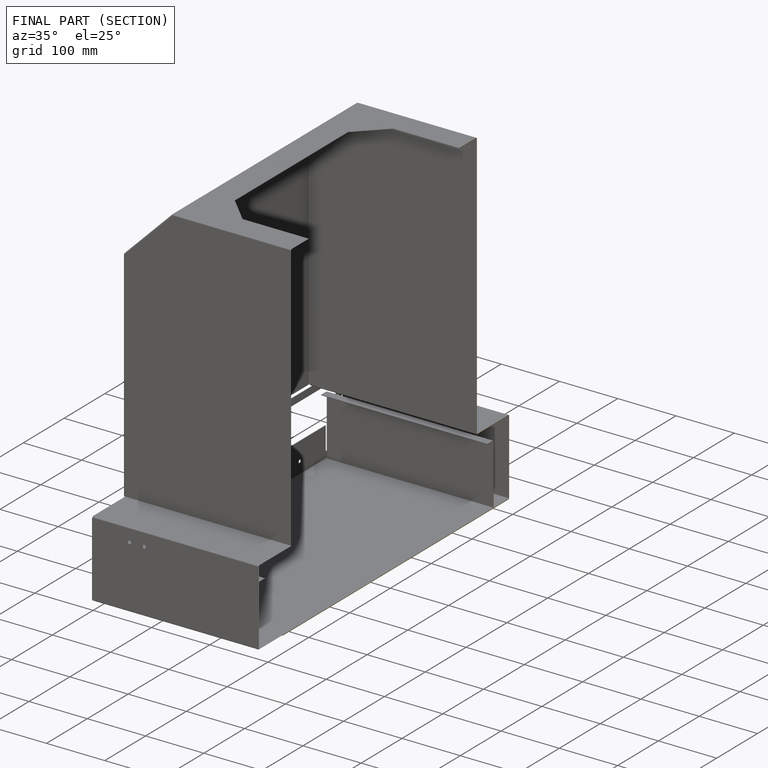
[diagram: finished part — half-section view (interior)]
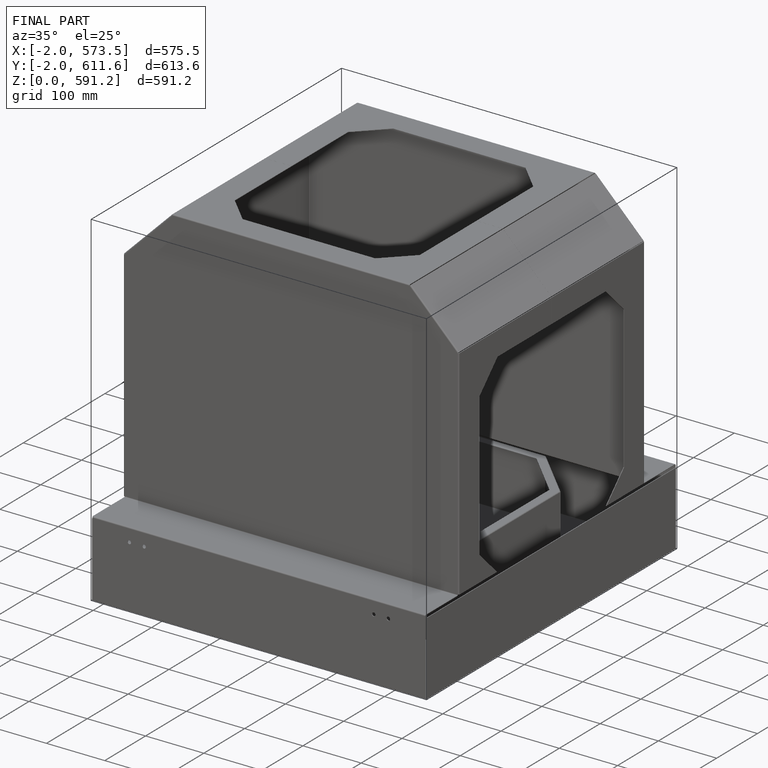
[diagram: finished part — iso view with bounding-box wireframe]
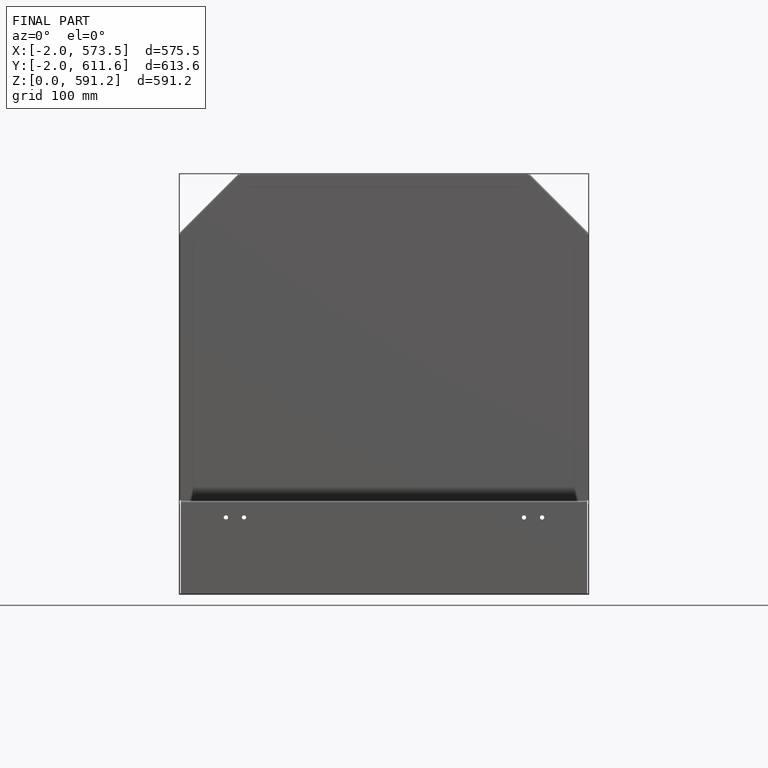
[diagram: finished part — front view with bounding-box wireframe]
